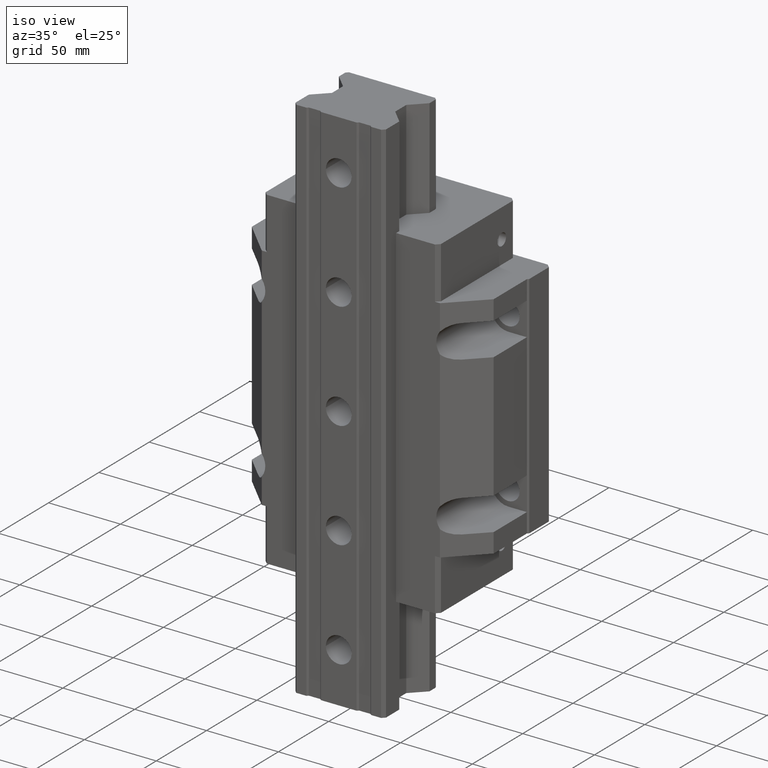
[diagram: clean part render]
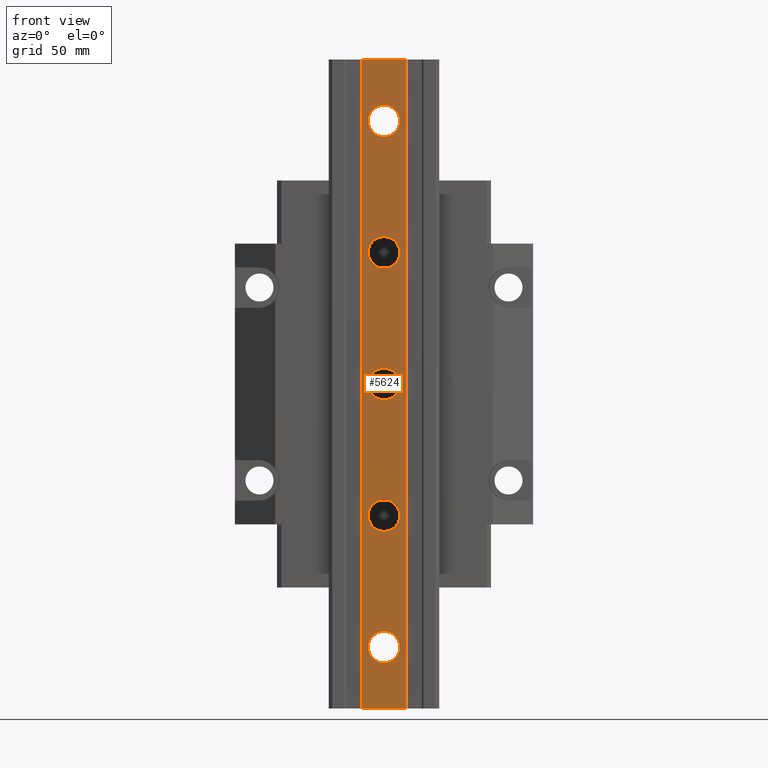
[diagram: tour spotlight — one face highlighted and labeled with its STEP entity id]
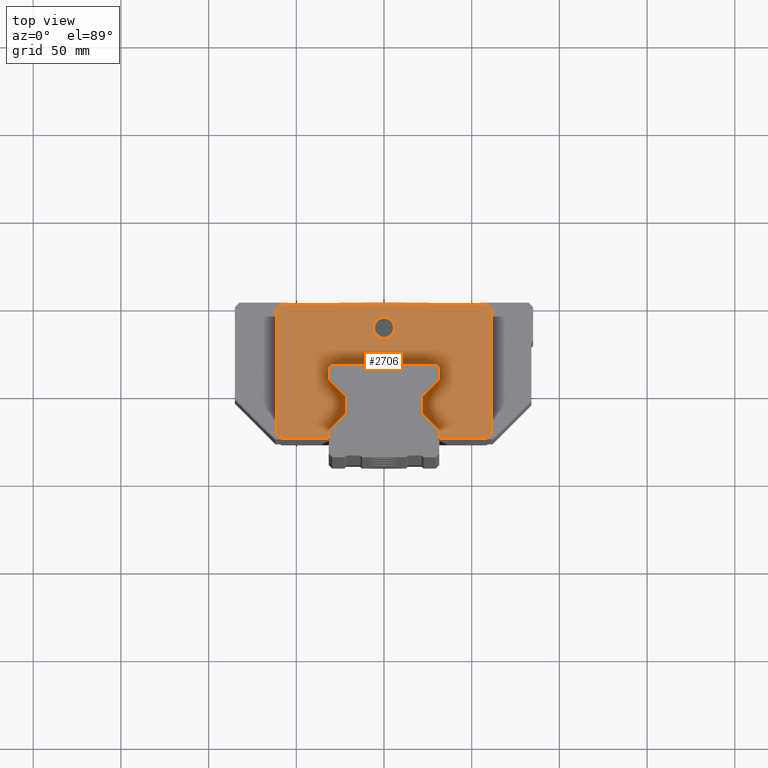
[diagram: tour spotlight — one face highlighted and labeled with its STEP entity id]
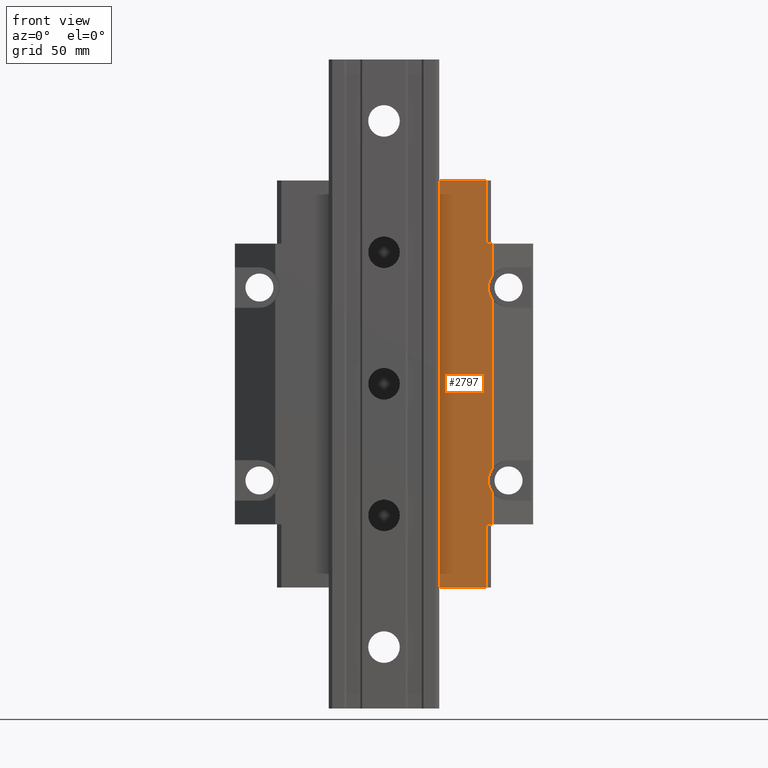
[diagram: tour spotlight — one face highlighted and labeled with its STEP entity id]
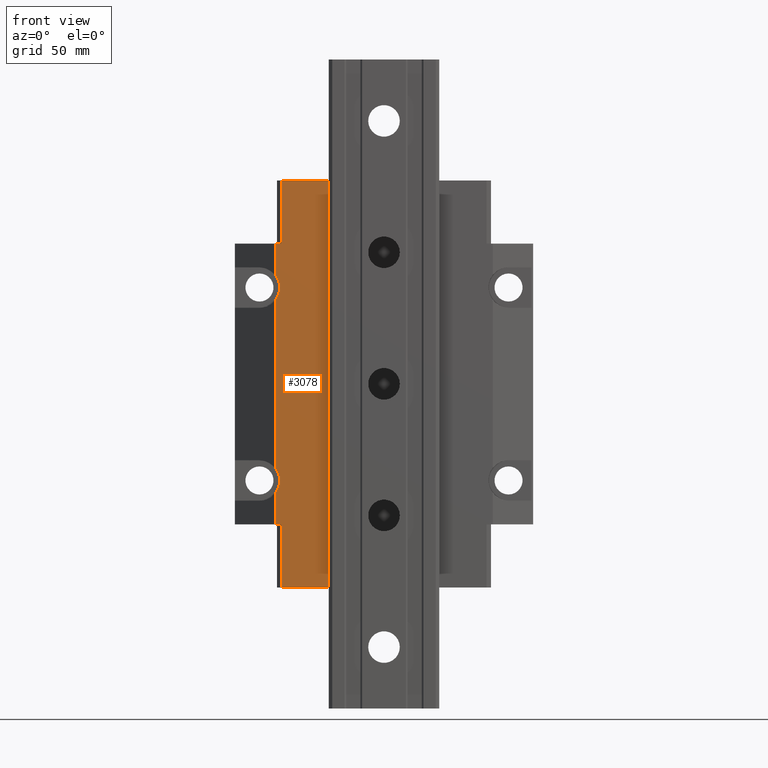
[diagram: tour spotlight — one face highlighted and labeled with its STEP entity id]
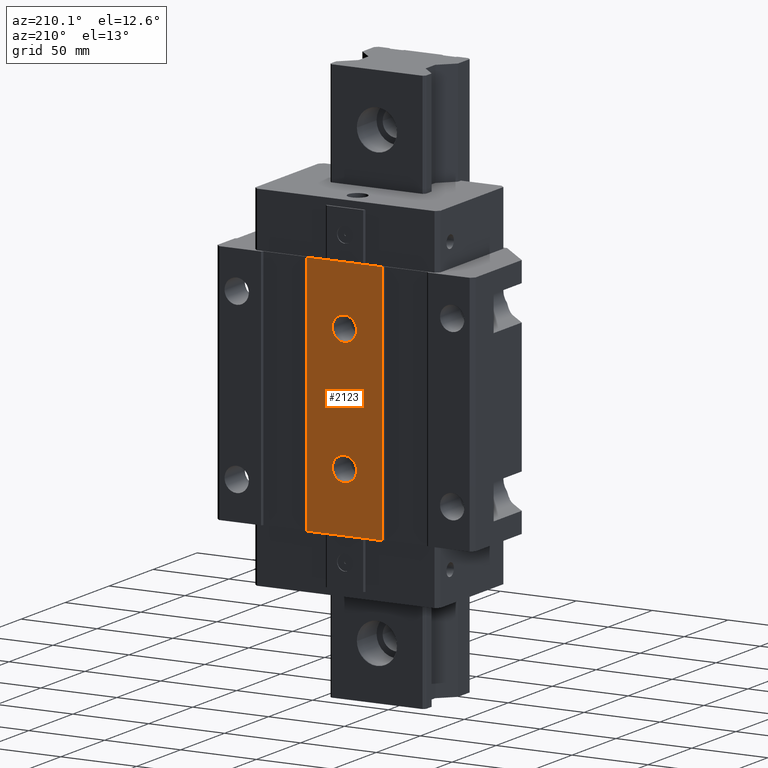
[diagram: tour spotlight — one face highlighted and labeled with its STEP entity id]
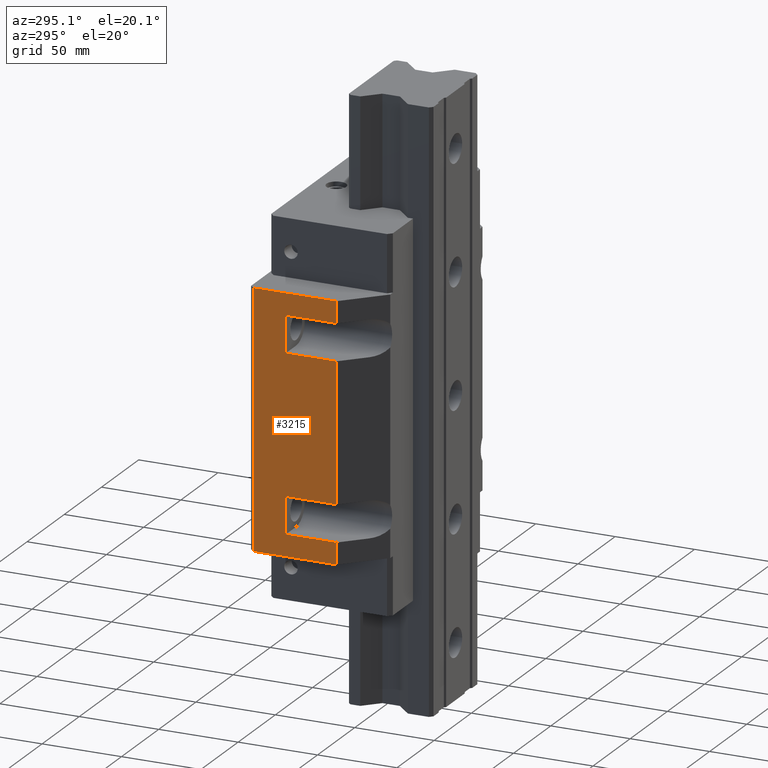
[diagram: tour spotlight — one face highlighted and labeled with its STEP entity id]
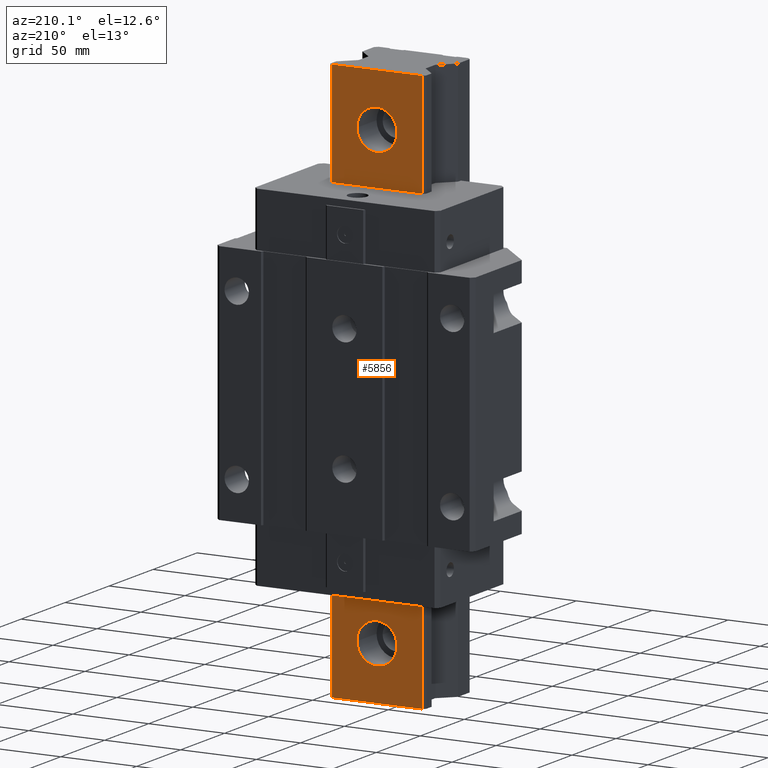
[diagram: tour spotlight — one face highlighted and labeled with its STEP entity id]
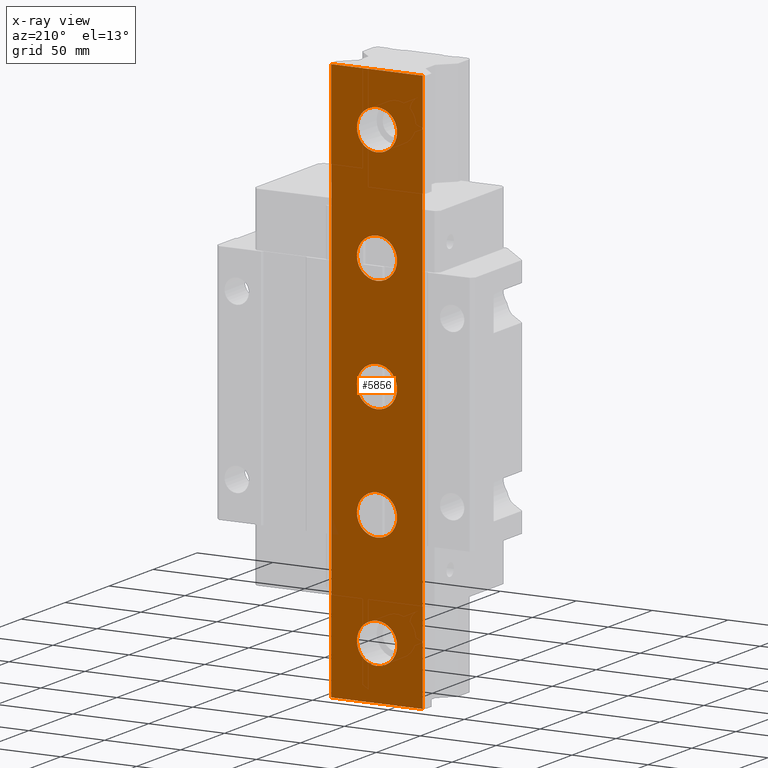
[diagram: x-ray of the same camera — body ghosted, this tour face saturated]
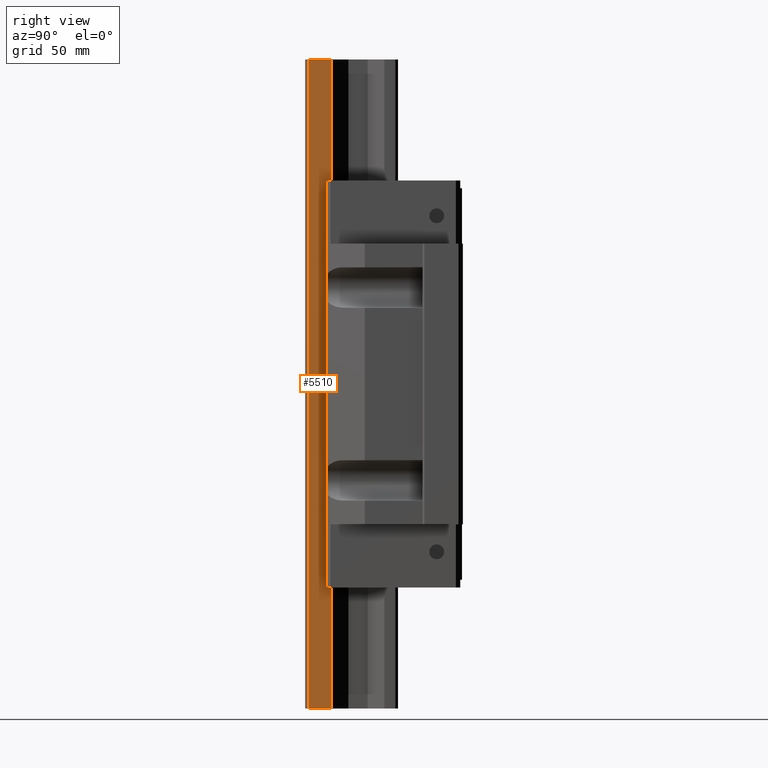
[diagram: tour spotlight — one face highlighted and labeled with its STEP entity id]
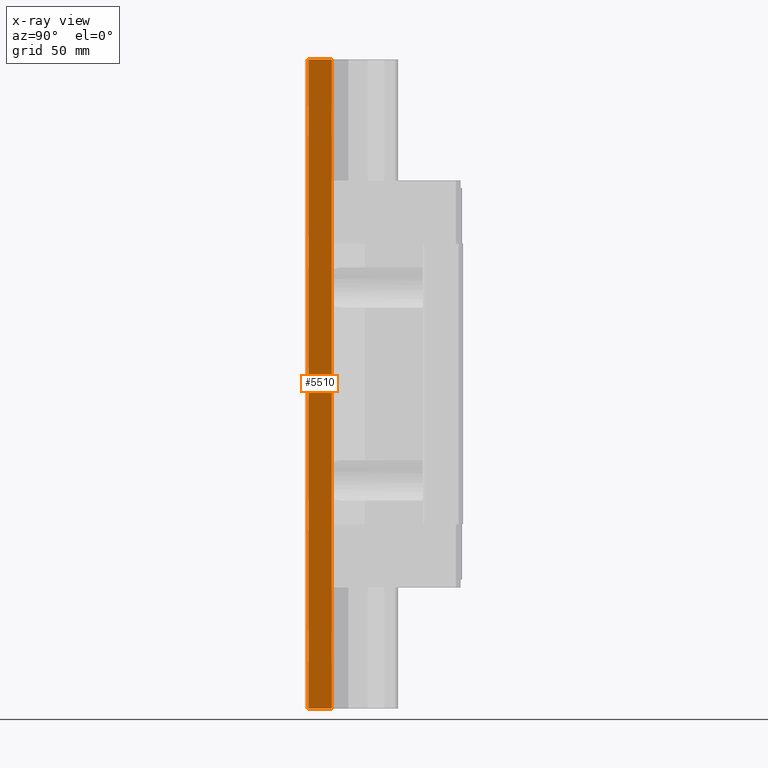
[diagram: x-ray of the same camera — body ghosted, this tour face saturated]
A machine part: a face-by-face anatomy tour. The part has 199 B-rep faces; the first image is the clean iso view, then the 8 largest visible faces are spotlighted one at a time (largest first), each with its STEP entity span.

Face 1 — front view, entity #5624. In plain terms, the highlighted planar face has unit normal (-0, -1, 0).
Definition (entity closure, byte-faithful):
#4470=DIRECTION('',(9.999999999998E-1,-5.787036611731E-7,0.E0));
#4471=VECTOR('',#4470,2.499998958334E1);
#4472=CARTESIAN_POINT('',(-1.250004234953E1,-8.999996674538E1,-1.85E2));
#4473=LINE('',#4472,#4471);
#4534=DIRECTION('',(0.E0,0.E0,1.E0));
#4535=VECTOR('',#4534,3.7E2);
#4536=CARTESIAN_POINT('',(1.249994723380E1,-8.999998121296E1,-1.85E2));
#4537=LINE('',#4536,#4535);
#4538=DIRECTION('',(0.E0,0.E0,1.E0));
#4539=VECTOR('',#4538,3.7E2);
#4540=CARTESIAN_POINT('',(-1.250004234953E1,-8.999996674538E1,-1.85E2));
#4541=LINE('',#4540,#4539);
#4542=DIRECTION('',(9.999999999998E-1,-5.787036611730E-7,0.E0));
#4543=VECTOR('',#4542,2.499998958334E1);
#4544=CARTESIAN_POINT('',(-1.250004234953E1,-8.999996674538E1,1.85E2));
#4545=LINE('',#4544,#4543);
#4546=CARTESIAN_POINT('',(-9.374997173481E-5,-8.999997397913E1,1.5E2));
#4547=DIRECTION('',(-1.041666653776E-6,-9.999999999995E-1,0.E0));
#4548=DIRECTION('',(-9.999999999995E-1,1.041666654563E-6,1.263187085796E-14));
#4549=AXIS2_PLACEMENT_3D('',#4546,#4547,#4548);
#4551=CARTESIAN_POINT('',(-9.374997173481E-5,-8.999997397913E1,1.5E2));
#4552=DIRECTION('',(-1.041666653776E-6,-9.999999999995E-1,0.E0));
#4553=DIRECTION('',(9.999999999995E-1,-1.041666654563E-6,1.263187085796E-14));
#4554=AXIS2_PLACEMENT_3D('',#4551,#4552,#4553);
#4556=CARTESIAN_POINT('',(-9.374997173481E-5,-8.999997397913E1,7.5E1));
#4557=DIRECTION('',(-1.041666653776E-6,-9.999999999995E-1,0.E0));
#4558=DIRECTION('',(-9.999999999995E-1,1.041666654563E-6,1.263187085796E-14));
#4559=AXIS2_PLACEMENT_3D('',#4556,#4557,#4558);
#4561=CARTESIAN_POINT('',(-9.374997173481E-5,-8.999997397913E1,7.5E1));
#4562=DIRECTION('',(-1.041666653776E-6,-9.999999999995E-1,0.E0));
#4563=DIRECTION('',(9.999999999995E-1,-1.041666654563E-6,1.263187085796E-14));
#4564=AXIS2_PLACEMENT_3D('',#4561,#4562,#4563);
#4566=CARTESIAN_POINT('',(-9.374997173481E-5,-8.999997397913E1,
8.526512829121E-14));
#4567=DIRECTION('',(-1.041666653776E-6,-9.999999999995E-1,0.E0));
#4568=DIRECTION('',(-9.999999999995E-1,1.041666654563E-6,0.E0));
#4569=AXIS2_PLACEMENT_3D('',#4566,#4567,#4568);
#4571=CARTESIAN_POINT('',(-9.374997173481E-5,-8.999997397913E1,
8.526512829121E-14));
#4572=DIRECTION('',(-1.041666653776E-6,-9.999999999995E-1,0.E0));
#4573=DIRECTION('',(9.999999999995E-1,-1.041666654563E-6,0.E0));
#4574=AXIS2_PLACEMENT_3D('',#4571,#4572,#4573);
#4576=CARTESIAN_POINT('',(-9.374997173481E-5,-8.999997397913E1,-7.5E1));
#4577=DIRECTION('',(-1.041666653776E-6,-9.999999999995E-1,0.E0));
#4578=DIRECTION('',(-9.999999999995E-1,1.041666654563E-6,0.E0));
#4579=AXIS2_PLACEMENT_3D('',#4576,#4577,#4578);
#4581=CARTESIAN_POINT('',(-9.374997173481E-5,-8.999997397913E1,-7.5E1));
#4582=DIRECTION('',(-1.041666653776E-6,-9.999999999995E-1,0.E0));
#4583=DIRECTION('',(9.999999999995E-1,-1.041666654563E-6,0.E0));
#4584=AXIS2_PLACEMENT_3D('',#4581,#4582,#4583);
#4586=CARTESIAN_POINT('',(-9.374997173481E-5,-8.999997397913E1,-1.5E2));
#4587=DIRECTION('',(-1.041666653776E-6,-9.999999999995E-1,0.E0));
#4588=DIRECTION('',(-9.999999999995E-1,1.041666654563E-6,0.E0));
#4589=AXIS2_PLACEMENT_3D('',#4586,#4587,#4588);
#4591=CARTESIAN_POINT('',(-9.374997173481E-5,-8.999997397913E1,-1.5E2));
#4592=DIRECTION('',(-1.041666653776E-6,-9.999999999995E-1,0.E0));
#4593=DIRECTION('',(9.999999999995E-1,-1.041666654563E-6,0.E0));
#4594=AXIS2_PLACEMENT_3D('',#4591,#4592,#4593);
#5216=CARTESIAN_POINT('',(-1.250004234953E1,-8.999996674538E1,-1.85E2));
#5217=VERTEX_POINT('',#5216);
#5218=CARTESIAN_POINT('',(1.249994723380E1,-8.999998121296E1,-1.85E2));
#5219=VERTEX_POINT('',#5218);
#5244=CARTESIAN_POINT('',(1.249994723380E1,-8.999998121296E1,1.85E2));
#5245=VERTEX_POINT('',#5244);
#5246=CARTESIAN_POINT('',(-1.250004234953E1,-8.999996674538E1,1.85E2));
#5247=VERTEX_POINT('',#5246);
#5248=CARTESIAN_POINT('',(-9.000093749967E0,-8.999996460413E1,1.5E2));
#5249=CARTESIAN_POINT('',(8.999906250023E0,-8.999998335413E1,1.5E2));
#5250=VERTEX_POINT('',#5248);
#5251=VERTEX_POINT('',#5249);
#5252=CARTESIAN_POINT('',(-9.000093749967E0,-8.999996460413E1,7.5E1));
#5253=CARTESIAN_POINT('',(8.999906250023E0,-8.999998335413E1,7.5E1));
#5254=VERTEX_POINT('',#5252);
#5255=VERTEX_POINT('',#5253);
#5256=CARTESIAN_POINT('',(-9.000093749967E0,-8.999996460413E1,
1.421085471520E-13));
#5257=CARTESIAN_POINT('',(8.999906250023E0,-8.999998335413E1,
1.392300445942E-13));
#5258=VERTEX_POINT('',#5256);
#5259=VERTEX_POINT('',#5257);
#5260=CARTESIAN_POINT('',(-9.000093749967E0,-8.999996460413E1,-7.5E1));
#5261=CARTESIAN_POINT('',(8.999906250023E0,-8.999998335413E1,-7.5E1));
#5262=VERTEX_POINT('',#5260);
#5263=VERTEX_POINT('',#5261);
#5264=CARTESIAN_POINT('',(-9.000093749967E0,-8.999996460413E1,-1.5E2));
#5265=CARTESIAN_POINT('',(8.999906250023E0,-8.999998335413E1,-1.5E2));
#5266=VERTEX_POINT('',#5264);
#5267=VERTEX_POINT('',#5265);
#5581=CARTESIAN_POINT('',(-1.250004958330E1,-8.999996095834E1,-1.85E2));
#5582=DIRECTION('',(-1.041666671171E-6,-9.999999999995E-1,0.E0));
#5583=DIRECTION('',(9.999999999995E-1,-1.041666671171E-6,0.E0));
#5584=AXIS2_PLACEMENT_3D('',#5581,#5582,#5583);
#5585=PLANE('',#5584);
#5586=ORIENTED_EDGE('',*,*,#5465,.F.);
#5588=ORIENTED_EDGE('',*,*,#5587,.T.);
#5590=ORIENTED_EDGE('',*,*,#5589,.T.);
#5591=ORIENTED_EDGE('',*,*,#5573,.F.);
#5592=EDGE_LOOP('',(#5586,#5588,#5590,#5591));
#5593=FACE_OUTER_BOUND('',#5592,.F.);
#5595=ORIENTED_EDGE('',*,*,#5594,.T.);
#5597=ORIENTED_EDGE('',*,*,#5596,.T.);
#5598=EDGE_LOOP('',(#5595,#5597));
#5599=FACE_BOUND('',#5598,.F.);
#5601=ORIENTED_EDGE('',*,*,#5600,.T.);
#5603=ORIENTED_EDGE('',*,*,#5602,.T.);
#5604=EDGE_LOOP('',(#5601,#5603));
#5605=FACE_BOUND('',#5604,.F.);
#5607=ORIENTED_EDGE('',*,*,#5606,.T.);
#5609=ORIENTED_EDGE('',*,*,#5608,.T.);
#5610=EDGE_LOOP('',(#5607,#5609));
#5611=FACE_BOUND('',#5610,.F.);
#5613=ORIENTED_EDGE('',*,*,#5612,.T.);
#5615=ORIENTED_EDGE('',*,*,#5614,.T.);
#5616=EDGE_LOOP('',(#5613,#5615));
#5617=FACE_BOUND('',#5616,.F.);
#5619=ORIENTED_EDGE('',*,*,#5618,.T.);
#5621=ORIENTED_EDGE('',*,*,#5620,.T.);
#5622=EDGE_LOOP('',(#5619,#5621));
#5623=FACE_BOUND('',#5622,.F.);
#5624=ADVANCED_FACE('',(#5593,#5599,#5605,#5611,#5617,#5623),#5585,.T.);
#4550=CIRCLE('',#4549,9.E0);
#4555=CIRCLE('',#4554,9.E0);
#4560=CIRCLE('',#4559,9.E0);
#4565=CIRCLE('',#4564,9.E0);
#4570=CIRCLE('',#4569,9.E0);
#4575=CIRCLE('',#4574,9.E0);
#4580=CIRCLE('',#4579,9.E0);
#4585=CIRCLE('',#4584,9.E0);
#4590=CIRCLE('',#4589,9.E0);
#4595=CIRCLE('',#4594,9.E0);
#5465=EDGE_CURVE('',#5217,#5219,#4473,.T.);
#5573=EDGE_CURVE('',#5219,#5245,#4537,.T.);
#5587=EDGE_CURVE('',#5217,#5247,#4541,.T.);
#5589=EDGE_CURVE('',#5247,#5245,#4545,.T.);
#5594=EDGE_CURVE('',#5250,#5251,#4550,.T.);
#5596=EDGE_CURVE('',#5251,#5250,#4555,.T.);
#5600=EDGE_CURVE('',#5254,#5255,#4560,.T.);
#5602=EDGE_CURVE('',#5255,#5254,#4565,.T.);
#5606=EDGE_CURVE('',#5258,#5259,#4570,.T.);
#5608=EDGE_CURVE('',#5259,#5258,#4575,.T.);
#5612=EDGE_CURVE('',#5262,#5263,#4580,.T.);
#5614=EDGE_CURVE('',#5263,#5262,#4585,.T.);
#5618=EDGE_CURVE('',#5266,#5267,#4590,.T.);
#5620=EDGE_CURVE('',#5267,#5266,#4595,.T.);

Face 2 — top view, entity #2706. In plain terms, the highlighted planar face has unit normal (0, 0, 1).
Definition (entity closure, byte-faithful):
#281=DIRECTION('',(0.E0,-1.E0,0.E0));
#282=VECTOR('',#281,7.1499992E1);
#283=CARTESIAN_POINT('',(-6.100006E1,-4.E0,1.16E2));
#284=LINE('',#283,#282);
#341=DIRECTION('',(-1.E0,1.601567881164E-14,0.E0));
#342=VECTOR('',#341,1.17E2);
#343=CARTESIAN_POINT('',(5.849994E1,-1.5E0,1.16E2));
#344=LINE('',#343,#342);
#493=DIRECTION('',(7.071067811865E-1,-7.071067811866E-1,0.E0));
#494=VECTOR('',#493,3.535533905933E0);
#495=CARTESIAN_POINT('',(5.849994E1,-1.5E0,1.16E2));
#496=LINE('',#495,#494);
#497=DIRECTION('',(-7.071067811865E-1,-7.071067811866E-1,0.E0));
#498=VECTOR('',#497,3.535533905933E0);
#499=CARTESIAN_POINT('',(6.099994E1,-7.5499992E1,1.16E2));
#500=LINE('',#499,#498);
#501=DIRECTION('',(-7.071067693190E-1,7.071067930541E-1,0.E0));
#502=VECTOR('',#501,1.343502940587E1);
#503=CARTESIAN_POINT('',(3.149994018310E1,-7.478096104164E1,1.16E2));
#504=LINE('',#503,#502);
#505=DIRECTION('',(7.071067808141E-1,7.071067815590E-1,0.E0));
#506=VECTOR('',#505,1.343502873807E1);
#507=CARTESIAN_POINT('',(2.199993994421E1,-5.431902284949E1,1.16E2));
#508=LINE('',#507,#506);
#509=CARTESIAN_POINT('',(3.049994E1,-3.891421356237E1,1.16E2));
#510=DIRECTION('',(0.E0,0.E0,1.E0));
#511=DIRECTION('',(9.999999999991E-1,1.315156737292E-6,0.E0));
#512=AXIS2_PLACEMENT_3D('',#509,#510,#511);
#514=DIRECTION('',(-7.071098320872E-1,7.071037302727E-1,2.497307503516E-14));
#515=VECTOR('',#514,1.707141154447E0);
#516=CARTESIAN_POINT('',(3.120704678120E1,-3.820710678120E1,1.16E2));
#517=LINE('',#516,#515);
#518=DIRECTION('',(-7.071037303087E-1,-7.071098320512E-1,-2.497278770616E-14));
#519=VECTOR('',#518,1.707160796273E0);
#520=CARTESIAN_POINT('',(-3.000002701391E1,-3.699995659726E1,1.16E2));
#521=LINE('',#520,#519);
#522=CARTESIAN_POINT('',(-3.050006E1,-3.891421356237E1,1.16E2));
#523=DIRECTION('',(0.E0,0.E0,1.E0));
#524=DIRECTION('',(-7.071067812118E-1,7.071067811613E-1,0.E0));
#525=AXIS2_PLACEMENT_3D('',#522,#523,#524);
#527=DIRECTION('',(7.071067808141E-1,-7.071067815590E-1,0.E0));
#528=VECTOR('',#527,1.343502873807E1);
#529=CARTESIAN_POINT('',(-3.150005986533E1,-4.481902291836E1,1.16E2));
#530=LINE('',#529,#528);
#531=DIRECTION('',(-7.071068016126E-1,-7.071067607605E-1,0.E0));
#532=VECTOR('',#531,1.343503046467E1);
#533=CARTESIAN_POINT('',(-2.200005994421E1,-6.528096048387E1,1.16E2));
#534=LINE('',#533,#532);
#535=DIRECTION('',(-7.071067811866E-1,7.071067811865E-1,0.E0));
#536=VECTOR('',#535,3.535533905933E0);
#537=CARTESIAN_POINT('',(-5.850006E1,-7.7999992E1,1.16E2));
#538=LINE('',#537,#536);
#539=DIRECTION('',(7.071067811864E-1,7.071067811867E-1,0.E0));
#540=VECTOR('',#539,3.535533905934E0);
#541=CARTESIAN_POINT('',(-6.100006E1,-4.E0,1.16E2));
#542=LINE('',#541,#540);
#543=CARTESIAN_POINT('',(2.842170943040E-13,-1.5E1,1.16E2));
#544=DIRECTION('',(0.E0,0.E0,1.E0));
#545=DIRECTION('',(-9.999999999995E-1,1.041667064214E-6,0.E0));
#546=AXIS2_PLACEMENT_3D('',#543,#544,#545);
#548=CARTESIAN_POINT('',(2.842170943040E-13,-1.5E1,1.16E2));
#549=DIRECTION('',(0.E0,0.E0,1.E0));
#550=DIRECTION('',(9.999999999995E-1,-1.041667063930E-6,0.E0));
#551=AXIS2_PLACEMENT_3D('',#548,#549,#550);
#577=DIRECTION('',(0.E0,1.E0,0.E0));
#578=VECTOR('',#577,7.1499992E1);
#579=CARTESIAN_POINT('',(6.099994E1,-7.5499992E1,1.16E2));
#580=LINE('',#579,#578);
#617=DIRECTION('',(1.E0,0.E0,0.E0));
#618=VECTOR('',#617,2.700000011282E1);
#619=CARTESIAN_POINT('',(3.149993988718E1,-7.7999992E1,1.16E2));
#620=LINE('',#619,#618);
#643=DIRECTION('',(-9.193061393849E-8,-1.E0,-1.765854991647E-14));
#644=VECTOR('',#643,3.219030958356E0);
#645=CARTESIAN_POINT('',(3.149994018310E1,-7.478096104164E1,1.16E2));
#646=LINE('',#645,#644);
#659=DIRECTION('',(8.815395168852E-14,-1.E0,0.E0));
#660=VECTOR('',#659,1.096193763438E1);
#661=CARTESIAN_POINT('',(2.199993994421E1,-5.431902284949E1,1.16E2));
#662=LINE('',#661,#660);
#675=DIRECTION('',(-1.791970200967E-8,-1.E0,1.203328737262E-14));
#676=VECTOR('',#675,5.904809830909E0);
#677=CARTESIAN_POINT('',(3.149993997114E1,-3.891421308745E1,1.16E2));
#678=LINE('',#677,#676);
#727=DIRECTION('',(9.999999999999E-1,-4.050925728465E-7,0.E0));
#728=VECTOR('',#727,5.999993750005E1);
#729=CARTESIAN_POINT('',(-3.000002701391E1,-3.699995659726E1,1.16E2));
#730=LINE('',#729,#728);
#799=DIRECTION('',(-1.791963451235E-8,1.E0,0.E0));
#800=VECTOR('',#799,5.904809867458E0);
#801=CARTESIAN_POINT('',(-3.150005986533E1,-4.481902291836E1,1.16E2));
#802=LINE('',#801,#800);
#815=DIRECTION('',(-3.921554468497E-14,1.E0,0.E0));
#816=VECTOR('',#815,1.096193763438E1);
#817=CARTESIAN_POINT('',(-2.200005994421E1,-6.528096048387E1,1.16E2));
#818=LINE('',#817,#816);
#831=DIRECTION('',(-6.248480242821E-7,9.999999999998E-1,2.648782746519E-14));
#832=VECTOR('',#831,3.219030643538E0);
#833=CARTESIAN_POINT('',(-3.150005935425E1,-7.7999992E1,1.16E2));
#834=LINE('',#833,#832);
#873=DIRECTION('',(1.E0,0.E0,0.E0));
#874=VECTOR('',#873,2.700000064575E1);
#875=CARTESIAN_POINT('',(-5.850006E1,-7.7999992E1,1.16E2));
#876=LINE('',#875,#874);
#1717=CARTESIAN_POINT('',(-3.150005935425E1,-7.7999992E1,1.16E2));
#1718=VERTEX_POINT('',#1717);
#1731=CARTESIAN_POINT('',(-5.850006E1,-7.7999992E1,1.16E2));
#1732=VERTEX_POINT('',#1731);
#1733=CARTESIAN_POINT('',(-3.150006136565E1,-7.478096135646E1,1.16E2));
#1734=VERTEX_POINT('',#1733);
#1735=CARTESIAN_POINT('',(-2.200005994421E1,-6.528096048387E1,1.16E2));
#1736=VERTEX_POINT('',#1735);
#1737=CARTESIAN_POINT('',(-2.200005994421E1,-5.431902284949E1,1.16E2));
#1738=VERTEX_POINT('',#1737);
#1739=CARTESIAN_POINT('',(-3.150005986533E1,-4.481902291836E1,1.16E2));
#1740=VERTEX_POINT('',#1739);
#1745=CARTESIAN_POINT('',(-3.150005997114E1,-3.891421305091E1,1.16E2));
#1746=VERTEX_POINT('',#1745);
#1755=CARTESIAN_POINT('',(-3.120716678121E1,-3.820710678121E1,1.16E2));
#1756=VERTEX_POINT('',#1755);
#1761=CARTESIAN_POINT('',(-3.000002701391E1,-3.699995659726E1,1.16E2));
#1762=VERTEX_POINT('',#1761);
#1763=CARTESIAN_POINT('',(2.999991048613E1,-3.699998090279E1,1.16E2));
#1764=VERTEX_POINT('',#1763);
#1829=CARTESIAN_POINT('',(-5.850006E1,-1.499999999999E0,1.16E2));
#1830=VERTEX_POINT('',#1829);
#1835=CARTESIAN_POINT('',(5.849994E1,-1.5E0,1.16E2));
#1836=VERTEX_POINT('',#1835);
#1837=CARTESIAN_POINT('',(-6.100006E1,-4.E0,1.16E2));
#1838=VERTEX_POINT('',#1837);
#1839=CARTESIAN_POINT('',(6.099994E1,-4.000000000001E0,1.16E2));
#1840=VERTEX_POINT('',#1839);
#1841=CARTESIAN_POINT('',(6.099994E1,-7.5499992E1,1.16E2));
#1842=VERTEX_POINT('',#1841);
#1843=CARTESIAN_POINT('',(5.849994E1,-7.7999992E1,1.16E2));
#1844=VERTEX_POINT('',#1843);
#1845=CARTESIAN_POINT('',(3.149993988718E1,-7.7999992E1,1.16E2));
#1846=VERTEX_POINT('',#1845);
#1847=CARTESIAN_POINT('',(3.149994018310E1,-7.478096104164E1,1.16E2));
#1848=VERTEX_POINT('',#1847);
#1849=CARTESIAN_POINT('',(2.199993994421E1,-6.528096048387E1,1.16E2));
#1850=VERTEX_POINT('',#1849);
#1851=CARTESIAN_POINT('',(2.199993994421E1,-5.431902284949E1,1.16E2));
#1852=VERTEX_POINT('',#1851);
#1853=CARTESIAN_POINT('',(3.149993986533E1,-4.481902291836E1,1.16E2));
#1854=VERTEX_POINT('',#1853);
#1855=CARTESIAN_POINT('',(3.149993997114E1,-3.891421308745E1,1.16E2));
#1856=VERTEX_POINT('',#1855);
#1857=CARTESIAN_POINT('',(3.120704678121E1,-3.820710678121E1,1.16E2));
#1858=VERTEX_POINT('',#1857);
#1859=CARTESIAN_POINT('',(-6.100006E1,-7.5499992E1,1.16E2));
#1860=VERTEX_POINT('',#1859);
#1861=CARTESIAN_POINT('',(-6.249999999996E0,-1.499999348958E1,1.16E2));
#1862=CARTESIAN_POINT('',(6.249999999997E0,-1.500000651042E1,1.16E2));
#1863=VERTEX_POINT('',#1861);
#1864=VERTEX_POINT('',#1862);
#2649=CARTESIAN_POINT('',(5.849994E1,-1.5E0,1.16E2));
#2650=DIRECTION('',(0.E0,0.E0,1.E0));
#2651=DIRECTION('',(1.E0,-1.997913434205E-14,0.E0));
#2652=AXIS2_PLACEMENT_3D('',#2649,#2650,#2651);
#2653=PLANE('',#2652);
#2655=ORIENTED_EDGE('',*,*,#2654,.T.);
#2657=ORIENTED_EDGE('',*,*,#2656,.F.);
#2659=ORIENTED_EDGE('',*,*,#2658,.T.);
#2661=ORIENTED_EDGE('',*,*,#2660,.F.);
#2663=ORIENTED_EDGE('',*,*,#2662,.F.);
#2665=ORIENTED_EDGE('',*,*,#2664,.T.);
#2667=ORIENTED_EDGE('',*,*,#2666,.F.);
#2669=ORIENTED_EDGE('',*,*,#2668,.T.);
#2671=ORIENTED_EDGE('',*,*,#2670,.F.);
#2673=ORIENTED_EDGE('',*,*,#2672,.T.);
#2675=ORIENTED_EDGE('',*,*,#2674,.T.);
#2677=ORIENTED_EDGE('',*,*,#2676,.F.);
#2679=ORIENTED_EDGE('',*,*,#2678,.T.);
#2681=ORIENTED_EDGE('',*,*,#2680,.T.);
#2683=ORIENTED_EDGE('',*,*,#2682,.F.);
#2685=ORIENTED_EDGE('',*,*,#2684,.T.);
#2687=ORIENTED_EDGE('',*,*,#2686,.F.);
#2689=ORIENTED_EDGE('',*,*,#2688,.T.);
#2691=ORIENTED_EDGE('',*,*,#2690,.F.);
#2693=ORIENTED_EDGE('',*,*,#2692,.F.);
#2694=ORIENTED_EDGE('',*,*,#2641,.T.);
#2695=ORIENTED_EDGE('',*,*,#2361,.F.);
#2696=ORIENTED_EDGE('',*,*,#2402,.T.);
#2697=ORIENTED_EDGE('',*,*,#2428,.F.);
#2698=EDGE_LOOP('',(#2655,#2657,#2659,#2661,#2663,#2665,#2667,#2669,#2671,#2673,
#2675,#2677,#2679,#2681,#2683,#2685,#2687,#2689,#2691,#2693,#2694,#2695,#2696,
#2697));
#2699=FACE_OUTER_BOUND('',#2698,.F.);
#2701=ORIENTED_EDGE('',*,*,#2700,.T.);
#2703=ORIENTED_EDGE('',*,*,#2702,.T.);
#2704=EDGE_LOOP('',(#2701,#2703));
#2705=FACE_BOUND('',#2704,.F.);
#2706=ADVANCED_FACE('',(#2699,#2705),#2653,.T.);
#513=CIRCLE('',#512,1.E0);
#526=CIRCLE('',#525,1.E0);
#547=CIRCLE('',#546,6.25E0);
#552=CIRCLE('',#551,6.25E0);
#2361=EDGE_CURVE('',#1838,#1860,#284,.T.);
#2402=EDGE_CURVE('',#1838,#1830,#542,.T.);
#2428=EDGE_CURVE('',#1836,#1830,#344,.T.);
#2641=EDGE_CURVE('',#1732,#1860,#538,.T.);
#2654=EDGE_CURVE('',#1836,#1840,#496,.T.);
#2656=EDGE_CURVE('',#1842,#1840,#580,.T.);
#2658=EDGE_CURVE('',#1842,#1844,#500,.T.);
#2660=EDGE_CURVE('',#1846,#1844,#620,.T.);
#2662=EDGE_CURVE('',#1848,#1846,#646,.T.);
#2664=EDGE_CURVE('',#1848,#1850,#504,.T.);
#2666=EDGE_CURVE('',#1852,#1850,#662,.T.);
#2668=EDGE_CURVE('',#1852,#1854,#508,.T.);
#2670=EDGE_CURVE('',#1856,#1854,#678,.T.);
#2672=EDGE_CURVE('',#1856,#1858,#513,.T.);
#2674=EDGE_CURVE('',#1858,#1764,#517,.T.);
#2676=EDGE_CURVE('',#1762,#1764,#730,.T.);
#2678=EDGE_CURVE('',#1762,#1756,#521,.T.);
#2680=EDGE_CURVE('',#1756,#1746,#526,.T.);
#2682=EDGE_CURVE('',#1740,#1746,#802,.T.);
#2684=EDGE_CURVE('',#1740,#1738,#530,.T.);
#2686=EDGE_CURVE('',#1736,#1738,#818,.T.);
#2688=EDGE_CURVE('',#1736,#1734,#534,.T.);
#2690=EDGE_CURVE('',#1718,#1734,#834,.T.);
#2692=EDGE_CURVE('',#1732,#1718,#876,.T.);
#2700=EDGE_CURVE('',#1863,#1864,#547,.T.);
#2702=EDGE_CURVE('',#1864,#1863,#552,.T.);

Face 3 — front view, entity #2797. In plain terms, the highlighted planar face has unit normal (0, -1, 0).
Definition (entity closure, byte-faithful):
#101=DIRECTION('',(1.E0,-4.466268624779E-14,0.E0));
#102=VECTOR('',#101,3.499999999999E0);
#103=CARTESIAN_POINT('',(5.849994E1,-7.7999992E1,-8.E1));
#104=LINE('',#103,#102);
#609=DIRECTION('',(0.E0,0.E0,-1.E0));
#610=VECTOR('',#609,3.6E1);
#611=CARTESIAN_POINT('',(5.849994E1,-7.7999992E1,-8.E1));
#612=LINE('',#611,#610);
#613=DIRECTION('',(-1.E0,0.E0,0.E0));
#614=VECTOR('',#613,2.699999999936E1);
#615=CARTESIAN_POINT('',(5.849994E1,-7.7999992E1,-1.16E2));
#616=LINE('',#615,#614);
#617=DIRECTION('',(1.E0,0.E0,0.E0));
#618=VECTOR('',#617,2.700000011282E1);
#619=CARTESIAN_POINT('',(3.149993988718E1,-7.7999992E1,1.16E2));
#620=LINE('',#619,#618);
#621=DIRECTION('',(1.E0,1.218073261303E-14,0.E0));
#622=VECTOR('',#621,3.500000000001E0);
#623=CARTESIAN_POINT('',(5.849994E1,-7.7999992E1,8.E1));
#624=LINE('',#623,#622);
#625=CARTESIAN_POINT('',(7.1E1,-7.7999992E1,5.5E1));
#626=DIRECTION('',(0.E0,-1.E0,0.E0));
#627=DIRECTION('',(-7.826139130435E-1,0.E0,6.225074000450E-1));
#628=AXIS2_PLACEMENT_3D('',#625,#626,#627);
#630=CARTESIAN_POINT('',(7.1E1,-7.7999992E1,-5.5E1));
#631=DIRECTION('',(0.E0,-1.E0,0.E0));
#632=DIRECTION('',(-7.826139130435E-1,0.E0,6.225074000450E-1));
#633=AXIS2_PLACEMENT_3D('',#630,#631,#632);
#635=DIRECTION('',(4.890626447879E-10,0.E0,-1.E0));
#636=VECTOR('',#635,2.32E2);
#637=CARTESIAN_POINT('',(3.149993988718E1,-7.7999992E1,1.16E2));
#638=LINE('',#637,#636);
#1119=DIRECTION('',(0.E0,0.E0,1.E0));
#1120=VECTOR('',#1119,3.6E1);
#1121=CARTESIAN_POINT('',(5.849994E1,-7.7999992E1,8.E1));
#1122=LINE('',#1121,#1120);
#1123=DIRECTION('',(3.425038422079E-14,0.E0,1.E0));
#1124=VECTOR('',#1123,1.784116489948E1);
#1125=CARTESIAN_POINT('',(6.199994E1,-7.7999992E1,6.215883510052E1));
#1126=LINE('',#1125,#1124);
#1190=DIRECTION('',(2.031127436349E-14,0.E0,1.E0));
#1191=VECTOR('',#1190,1.784116489948E1);
#1192=CARTESIAN_POINT('',(6.199994E1,-7.7999992E1,-8.E1));
#1193=LINE('',#1192,#1191);
#1222=DIRECTION('',(0.E0,0.E0,1.E0));
#1223=VECTOR('',#1222,9.568232979896E1);
#1224=CARTESIAN_POINT('',(6.199994E1,-7.7999992E1,-4.784116489948E1));
#1225=LINE('',#1224,#1223);
#1621=CARTESIAN_POINT('',(5.849994E1,-7.7999992E1,-8.E1));
#1622=VERTEX_POINT('',#1621);
#1623=CARTESIAN_POINT('',(6.199994E1,-7.7999992E1,-8.E1));
#1624=VERTEX_POINT('',#1623);
#1707=CARTESIAN_POINT('',(3.149994000064E1,-7.7999992E1,-1.16E2));
#1708=VERTEX_POINT('',#1707);
#1709=CARTESIAN_POINT('',(5.849994E1,-7.7999992E1,-1.16E2));
#1710=VERTEX_POINT('',#1709);
#1821=CARTESIAN_POINT('',(6.199994E1,-7.7999992E1,8.E1));
#1822=VERTEX_POINT('',#1821);
#1823=CARTESIAN_POINT('',(5.849994E1,-7.7999992E1,8.E1));
#1824=VERTEX_POINT('',#1823);
#1843=CARTESIAN_POINT('',(5.849994E1,-7.7999992E1,1.16E2));
#1844=VERTEX_POINT('',#1843);
#1845=CARTESIAN_POINT('',(3.149993988718E1,-7.7999992E1,1.16E2));
#1846=VERTEX_POINT('',#1845);
#1865=CARTESIAN_POINT('',(6.199994E1,-7.7999992E1,6.215883510052E1));
#1866=VERTEX_POINT('',#1865);
#1867=CARTESIAN_POINT('',(6.199994E1,-7.7999992E1,4.784116489948E1));
#1868=VERTEX_POINT('',#1867);
#1869=CARTESIAN_POINT('',(6.199994E1,-7.7999992E1,-4.784116489948E1));
#1870=VERTEX_POINT('',#1869);
#1871=CARTESIAN_POINT('',(6.199994E1,-7.7999992E1,-6.215883510052E1));
#1872=VERTEX_POINT('',#1871);
#2771=CARTESIAN_POINT('',(3.149993995026E1,-7.7999992E1,-8.E1));
#2772=DIRECTION('',(0.E0,-1.E0,0.E0));
#2773=DIRECTION('',(1.E0,0.E0,0.E0));
#2774=AXIS2_PLACEMENT_3D('',#2771,#2772,#2773);
#2775=PLANE('',#2774);
#2776=ORIENTED_EDGE('',*,*,#2765,.T.);
#2777=ORIENTED_EDGE('',*,*,#2324,.T.);
#2779=ORIENTED_EDGE('',*,*,#2778,.F.);
#2780=ORIENTED_EDGE('',*,*,#2660,.T.);
#2782=ORIENTED_EDGE('',*,*,#2781,.F.);
#2783=ORIENTED_EDGE('',*,*,#2483,.T.);
#2785=ORIENTED_EDGE('',*,*,#2784,.F.);
#2787=ORIENTED_EDGE('',*,*,#2786,.T.);
#2789=ORIENTED_EDGE('',*,*,#2788,.F.);
#2791=ORIENTED_EDGE('',*,*,#2790,.T.);
#2793=ORIENTED_EDGE('',*,*,#2792,.F.);
#2794=ORIENTED_EDGE('',*,*,#2201,.F.);
#2795=EDGE_LOOP('',(#2776,#2777,#2779,#2780,#2782,#2783,#2785,#2787,#2789,#2791,
#2793,#2794));
#2796=FACE_OUTER_BOUND('',#2795,.F.);
#2797=ADVANCED_FACE('',(#2796),#2775,.T.);
#629=CIRCLE('',#628,1.15E1);
#634=CIRCLE('',#633,1.15E1);
#2201=EDGE_CURVE('',#1622,#1624,#104,.T.);
#2324=EDGE_CURVE('',#1710,#1708,#616,.T.);
#2483=EDGE_CURVE('',#1824,#1822,#624,.T.);
#2660=EDGE_CURVE('',#1846,#1844,#620,.T.);
#2765=EDGE_CURVE('',#1622,#1710,#612,.T.);
#2778=EDGE_CURVE('',#1846,#1708,#638,.T.);
#2781=EDGE_CURVE('',#1824,#1844,#1122,.T.);
#2784=EDGE_CURVE('',#1866,#1822,#1126,.T.);
#2786=EDGE_CURVE('',#1866,#1868,#629,.T.);
#2788=EDGE_CURVE('',#1870,#1868,#1225,.T.);
#2790=EDGE_CURVE('',#1870,#1872,#634,.T.);
#2792=EDGE_CURVE('',#1624,#1872,#1193,.T.);

Face 4 — front view, entity #3078. In plain terms, the highlighted planar face has unit normal (0, -1, 0).
Definition (entity closure, byte-faithful):
#173=DIRECTION('',(1.E0,-2.030122102172E-13,0.E0));
#174=VECTOR('',#173,3.499999999999E0);
#175=CARTESIAN_POINT('',(-6.200006E1,-7.7999992E1,-8.E1));
#176=LINE('',#175,#174);
#835=DIRECTION('',(4.890567950611E-10,0.E0,-1.E0));
#836=VECTOR('',#835,2.32E2);
#837=CARTESIAN_POINT('',(-3.150005935425E1,-7.7999992E1,1.16E2));
#838=LINE('',#837,#836);
#839=DIRECTION('',(-1.E0,-2.263210131745E-14,0.E0));
#840=VECTOR('',#839,2.700000075922E1);
#841=CARTESIAN_POINT('',(-3.150005924078E1,-7.7999992E1,-1.16E2));
#842=LINE('',#841,#840);
#843=DIRECTION('',(-4.102115587443E-14,0.E0,1.E0));
#844=VECTOR('',#843,1.784101403854E1);
#845=CARTESIAN_POINT('',(-6.200006E1,-7.7999992E1,-8.E1));
#846=LINE('',#845,#844);
#847=CARTESIAN_POINT('',(-7.1E1,-7.7999992E1,-5.5E1));
#848=DIRECTION('',(0.E0,-1.E0,0.E0));
#849=DIRECTION('',(7.826034782609E-1,0.E0,-6.225205183879E-1));
#850=AXIS2_PLACEMENT_3D('',#847,#848,#849);
#852=DIRECTION('',(0.E0,0.E0,1.E0));
#853=VECTOR('',#852,9.568202807708E1);
#854=CARTESIAN_POINT('',(-6.200006E1,-7.7999992E1,-4.784101403854E1));
#855=LINE('',#854,#853);
#856=CARTESIAN_POINT('',(-7.1E1,-7.7999992E1,5.5E1));
#857=DIRECTION('',(0.E0,-1.E0,0.E0));
#858=DIRECTION('',(7.826034782609E-1,0.E0,-6.225205183879E-1));
#859=AXIS2_PLACEMENT_3D('',#856,#857,#858);
#861=DIRECTION('',(-1.752360056772E-14,0.E0,1.E0));
#862=VECTOR('',#861,1.784101403854E1);
#863=CARTESIAN_POINT('',(-6.200006E1,-7.7999992E1,6.215898596146E1));
#864=LINE('',#863,#862);
#865=DIRECTION('',(1.E0,-1.745905007868E-13,0.E0));
#866=VECTOR('',#865,3.5E0);
#867=CARTESIAN_POINT('',(-6.200006E1,-7.7999992E1,8.E1));
#868=LINE('',#867,#866);
#869=DIRECTION('',(0.E0,0.E0,1.E0));
#870=VECTOR('',#869,3.6E1);
#871=CARTESIAN_POINT('',(-5.850006E1,-7.7999992E1,8.E1));
#872=LINE('',#871,#870);
#873=DIRECTION('',(1.E0,0.E0,0.E0));
#874=VECTOR('',#873,2.700000064575E1);
#875=CARTESIAN_POINT('',(-5.850006E1,-7.7999992E1,1.16E2));
#876=LINE('',#875,#874);
#877=DIRECTION('',(-1.223712489365E-14,0.E0,-1.E0));
#878=VECTOR('',#877,3.6E1);
#879=CARTESIAN_POINT('',(-5.850006E1,-7.7999992E1,-8.E1));
#880=LINE('',#879,#878);
#1653=CARTESIAN_POINT('',(-6.200006E1,-7.7999992E1,-8.E1));
#1654=VERTEX_POINT('',#1653);
#1655=CARTESIAN_POINT('',(-5.850006E1,-7.7999992E1,-8.E1));
#1656=VERTEX_POINT('',#1655);
#1675=CARTESIAN_POINT('',(-5.850006E1,-7.7999992E1,-1.16E2));
#1676=VERTEX_POINT('',#1675);
#1677=CARTESIAN_POINT('',(-3.150005924078E1,-7.7999992E1,-1.16E2));
#1678=VERTEX_POINT('',#1677);
#1717=CARTESIAN_POINT('',(-3.150005935425E1,-7.7999992E1,1.16E2));
#1718=VERTEX_POINT('',#1717);
#1719=CARTESIAN_POINT('',(-6.200006E1,-7.7999992E1,-6.215898596146E1));
#1720=VERTEX_POINT('',#1719);
#1721=CARTESIAN_POINT('',(-6.200006E1,-7.7999992E1,-4.784101403854E1));
#1722=VERTEX_POINT('',#1721);
#1723=CARTESIAN_POINT('',(-6.200006E1,-7.7999992E1,4.784101403854E1));
#1724=VERTEX_POINT('',#1723);
#1725=CARTESIAN_POINT('',(-6.200006E1,-7.7999992E1,6.215898596146E1));
#1726=VERTEX_POINT('',#1725);
#1727=CARTESIAN_POINT('',(-6.200006E1,-7.7999992E1,8.E1));
#1728=VERTEX_POINT('',#1727);
#1729=CARTESIAN_POINT('',(-5.850006E1,-7.7999992E1,8.E1));
#1730=VERTEX_POINT('',#1729);
#1731=CARTESIAN_POINT('',(-5.850006E1,-7.7999992E1,1.16E2));
#1732=VERTEX_POINT('',#1731);
#3053=CARTESIAN_POINT('',(-6.200006E1,-7.7999992E1,-8.E1));
#3054=DIRECTION('',(0.E0,-1.E0,0.E0));
#3055=DIRECTION('',(1.E0,0.E0,0.E0));
#3056=AXIS2_PLACEMENT_3D('',#3053,#3054,#3055);
#3057=PLANE('',#3056);
#3058=ORIENTED_EDGE('',*,*,#3047,.T.);
#3059=ORIENTED_EDGE('',*,*,#2292,.T.);
#3061=ORIENTED_EDGE('',*,*,#3060,.F.);
#3062=ORIENTED_EDGE('',*,*,#2234,.F.);
#3064=ORIENTED_EDGE('',*,*,#3063,.T.);
#3066=ORIENTED_EDGE('',*,*,#3065,.T.);
#3068=ORIENTED_EDGE('',*,*,#3067,.T.);
#3070=ORIENTED_EDGE('',*,*,#3069,.T.);
#3072=ORIENTED_EDGE('',*,*,#3071,.T.);
#3073=ORIENTED_EDGE('',*,*,#2450,.T.);
#3074=ORIENTED_EDGE('',*,*,#2643,.T.);
#3075=ORIENTED_EDGE('',*,*,#2692,.T.);
#3076=EDGE_LOOP('',(#3058,#3059,#3061,#3062,#3064,#3066,#3068,#3070,#3072,#3073,
#3074,#3075));
#3077=FACE_OUTER_BOUND('',#3076,.F.);
#3078=ADVANCED_FACE('',(#3077),#3057,.T.);
#851=CIRCLE('',#850,1.15E1);
#860=CIRCLE('',#859,1.15E1);
#2234=EDGE_CURVE('',#1654,#1656,#176,.T.);
#2292=EDGE_CURVE('',#1678,#1676,#842,.T.);
#2450=EDGE_CURVE('',#1728,#1730,#868,.T.);
#2643=EDGE_CURVE('',#1730,#1732,#872,.T.);
#2692=EDGE_CURVE('',#1732,#1718,#876,.T.);
#3047=EDGE_CURVE('',#1718,#1678,#838,.T.);
#3060=EDGE_CURVE('',#1656,#1676,#880,.T.);
#3063=EDGE_CURVE('',#1654,#1720,#846,.T.);
#3065=EDGE_CURVE('',#1720,#1722,#851,.T.);
#3067=EDGE_CURVE('',#1722,#1724,#855,.T.);
#3069=EDGE_CURVE('',#1724,#1726,#860,.T.);
#3071=EDGE_CURVE('',#1726,#1728,#864,.T.);

Face 5 — auxiliary view, entity #2123. In plain terms, the highlighted planar face has unit normal (-0, 1, 0).
Definition (entity closure, byte-faithful):
#1=DIRECTION('',(0.E0,0.E0,1.E0));
#2=VECTOR('',#1,1.6E2);
#3=CARTESIAN_POINT('',(2.499994E1,5.030705689208E-13,-8.E1));
#4=LINE('',#3,#2);
#5=DIRECTION('',(-1.E0,-1.720882377287E-14,0.E0));
#6=VECTOR('',#5,5.E1);
#7=CARTESIAN_POINT('',(2.499994E1,5.030705689208E-13,8.E1));
#8=LINE('',#7,#6);
#45=CARTESIAN_POINT('',(0.E0,-1.000738535218E-12,4.1E1));
#46=DIRECTION('',(0.E0,1.E0,0.E0));
#47=DIRECTION('',(0.E0,0.E0,-1.E0));
#48=AXIS2_PLACEMENT_3D('',#45,#46,#47);
#50=CARTESIAN_POINT('',(0.E0,-8.180588042126E-13,4.1E1));
#51=DIRECTION('',(0.E0,1.E0,0.E0));
#52=DIRECTION('',(0.E0,0.E0,1.E0));
#53=AXIS2_PLACEMENT_3D('',#50,#51,#52);
#55=CARTESIAN_POINT('',(0.E0,-1.000738535218E-12,-4.1E1));
#56=DIRECTION('',(0.E0,1.E0,0.E0));
#57=DIRECTION('',(0.E0,0.E0,-1.E0));
#58=AXIS2_PLACEMENT_3D('',#55,#56,#57);
#60=CARTESIAN_POINT('',(0.E0,-8.180588042126E-13,-4.1E1));
#61=DIRECTION('',(0.E0,1.E0,0.E0));
#62=DIRECTION('',(0.E0,0.E0,1.E0));
#63=AXIS2_PLACEMENT_3D('',#60,#61,#62);
#141=DIRECTION('',(-1.E0,-1.720882377287E-14,0.E0));
#142=VECTOR('',#141,5.E1);
#143=CARTESIAN_POINT('',(2.499994E1,5.030705689208E-13,-8.E1));
#144=LINE('',#143,#142);
#1411=DIRECTION('',(0.E0,0.E0,1.E0));
#1412=VECTOR('',#1411,1.6E2);
#1413=CARTESIAN_POINT('',(-2.500006E1,-3.573706197227E-13,-8.E1));
#1414=LINE('',#1413,#1412);
#1637=CARTESIAN_POINT('',(2.499994E1,5.031530747601E-13,-8.E1));
#1638=VERTEX_POINT('',#1637);
#1639=CARTESIAN_POINT('',(-2.500006E1,-3.573706197227E-13,-8.E1));
#1640=VERTEX_POINT('',#1639);
#1777=CARTESIAN_POINT('',(2.499994E1,5.030705689208E-13,8.E1));
#1778=VERTEX_POINT('',#1777);
#1779=CARTESIAN_POINT('',(-2.500006E1,-3.573706197227E-13,8.E1));
#1780=VERTEX_POINT('',#1779);
#2056=CARTESIAN_POINT('',(0.E0,-1.000738535218E-12,3.3E1));
#2057=CARTESIAN_POINT('',(0.E0,-1.000738535218E-12,4.9E1));
#2058=VERTEX_POINT('',#2056);
#2059=VERTEX_POINT('',#2057);
#2060=CARTESIAN_POINT('',(0.E0,-1.000738535218E-12,-4.9E1));
#2061=CARTESIAN_POINT('',(0.E0,-1.000738535218E-12,-3.3E1));
#2062=VERTEX_POINT('',#2060);
#2063=VERTEX_POINT('',#2061);
#2096=CARTESIAN_POINT('',(8.2499937E1,4.547E-13,-8.E1));
#2097=DIRECTION('',(-1.653454195626E-14,1.E0,0.E0));
#2098=DIRECTION('',(-1.E0,-1.653454195626E-14,0.E0));
#2099=AXIS2_PLACEMENT_3D('',#2096,#2097,#2098);
#2100=PLANE('',#2099);
#2102=ORIENTED_EDGE('',*,*,#2101,.F.);
#2104=ORIENTED_EDGE('',*,*,#2103,.T.);
#2106=ORIENTED_EDGE('',*,*,#2105,.T.);
#2108=ORIENTED_EDGE('',*,*,#2107,.F.);
#2109=EDGE_LOOP('',(#2102,#2104,#2106,#2108));
#2110=FACE_OUTER_BOUND('',#2109,.F.);
#2112=ORIENTED_EDGE('',*,*,#2111,.T.);
#2114=ORIENTED_EDGE('',*,*,#2113,.T.);
#2115=EDGE_LOOP('',(#2112,#2114));
#2116=FACE_BOUND('',#2115,.F.);
#2118=ORIENTED_EDGE('',*,*,#2117,.T.);
#2120=ORIENTED_EDGE('',*,*,#2119,.T.);
#2121=EDGE_LOOP('',(#2118,#2120));
#2122=FACE_BOUND('',#2121,.F.);
#2123=ADVANCED_FACE('',(#2110,#2116,#2122),#2100,.T.);
#49=CIRCLE('',#48,8.E0);
#54=CIRCLE('',#53,8.E0);
#59=CIRCLE('',#58,8.E0);
#64=CIRCLE('',#63,8.E0);
#2101=EDGE_CURVE('',#1638,#1640,#144,.T.);
#2103=EDGE_CURVE('',#1638,#1778,#4,.T.);
#2105=EDGE_CURVE('',#1778,#1780,#8,.T.);
#2107=EDGE_CURVE('',#1640,#1780,#1414,.T.);
#2111=EDGE_CURVE('',#2058,#2059,#49,.T.);
#2113=EDGE_CURVE('',#2059,#2058,#54,.T.);
#2117=EDGE_CURVE('',#2062,#2063,#59,.T.);
#2119=EDGE_CURVE('',#2063,#2062,#64,.T.);

Face 6 — auxiliary view, entity #3215. In plain terms, the highlighted planar face has unit normal (-1, 0, 0).
Definition (entity closure, byte-faithful):
#165=DIRECTION('',(0.E0,-1.E0,0.E0));
#166=VECTOR('',#165,5.2499992E1);
#167=CARTESIAN_POINT('',(-8.500006E1,-2.5E0,-8.E1));
#168=LINE('',#167,#166);
#881=DIRECTION('',(0.E0,-4.842217162217E-14,1.E0));
#882=VECTOR('',#881,1.35E1);
#883=CARTESIAN_POINT('',(-8.500006E1,-5.4999992E1,-8.E1));
#884=LINE('',#883,#882);
#905=DIRECTION('',(0.E0,0.E0,1.E0));
#906=VECTOR('',#905,8.7E1);
#907=CARTESIAN_POINT('',(-8.500006E1,-5.4999992E1,-4.35E1));
#908=LINE('',#907,#906);
#929=DIRECTION('',(0.E0,-8.000184876706E-14,1.E0));
#930=VECTOR('',#929,1.35E1);
#931=CARTESIAN_POINT('',(-8.500006E1,-5.4999992E1,6.65E1));
#932=LINE('',#931,#930);
#937=DIRECTION('',(0.E0,0.E0,1.E0));
#938=VECTOR('',#937,1.6E2);
#939=CARTESIAN_POINT('',(-8.500006E1,-2.5E0,-8.E1));
#940=LINE('',#939,#938);
#941=DIRECTION('',(0.E0,-1.E0,0.E0));
#942=VECTOR('',#941,5.2499992E1);
#943=CARTESIAN_POINT('',(-8.500006E1,-2.5E0,8.E1));
#944=LINE('',#943,#942);
#945=DIRECTION('',(0.E0,1.E0,0.E0));
#946=VECTOR('',#945,3.1999992E1);
#947=CARTESIAN_POINT('',(-8.500006E1,-5.4999992E1,6.65E1));
#948=LINE('',#947,#946);
#949=DIRECTION('',(0.E0,1.E0,0.E0));
#950=VECTOR('',#949,3.1999992E1);
#951=CARTESIAN_POINT('',(-8.500006E1,-5.4999992E1,-4.35E1));
#952=LINE('',#951,#950);
#953=DIRECTION('',(0.E0,0.E0,1.E0));
#954=VECTOR('',#953,2.3E1);
#955=CARTESIAN_POINT('',(-8.500006E1,-2.3E1,-6.65E1));
#956=LINE('',#955,#954);
#984=DIRECTION('',(0.E0,1.E0,0.E0));
#985=VECTOR('',#984,3.1999992E1);
#986=CARTESIAN_POINT('',(-8.500006E1,-5.4999992E1,-6.65E1));
#987=LINE('',#986,#985);
#1004=DIRECTION('',(0.E0,0.E0,1.E0));
#1005=VECTOR('',#1004,2.3E1);
#1006=CARTESIAN_POINT('',(-8.500006E1,-2.3E1,4.35E1));
#1007=LINE('',#1006,#1005);
#1031=DIRECTION('',(0.E0,1.E0,0.E0));
#1032=VECTOR('',#1031,3.1999992E1);
#1033=CARTESIAN_POINT('',(-8.500006E1,-5.4999992E1,4.35E1));
#1034=LINE('',#1033,#1032);
#1649=CARTESIAN_POINT('',(-8.500006E1,-2.5E0,-8.E1));
#1650=VERTEX_POINT('',#1649);
#1651=CARTESIAN_POINT('',(-8.500006E1,-5.4999992E1,-8.E1));
#1652=VERTEX_POINT('',#1651);
#1801=CARTESIAN_POINT('',(-8.500006E1,-5.4999992E1,8.E1));
#1802=VERTEX_POINT('',#1801);
#1803=CARTESIAN_POINT('',(-8.500006E1,-2.5E0,8.E1));
#1804=VERTEX_POINT('',#1803);
#1945=CARTESIAN_POINT('',(-8.500006E1,-5.4999992E1,6.65E1));
#1946=VERTEX_POINT('',#1945);
#1953=CARTESIAN_POINT('',(-8.500006E1,-5.4999992E1,-4.35E1));
#1954=VERTEX_POINT('',#1953);
#1955=CARTESIAN_POINT('',(-8.500006E1,-5.4999992E1,4.35E1));
#1956=VERTEX_POINT('',#1955);
#1962=CARTESIAN_POINT('',(-8.500006E1,-5.4999992E1,-6.65E1));
#1963=VERTEX_POINT('',#1962);
#1964=CARTESIAN_POINT('',(-8.500006E1,-2.3E1,-6.65E1));
#1965=CARTESIAN_POINT('',(-8.500006E1,-2.3E1,-4.35E1));
#1966=VERTEX_POINT('',#1964);
#1967=VERTEX_POINT('',#1965);
#1968=CARTESIAN_POINT('',(-8.500006E1,-2.3E1,6.65E1));
#1969=VERTEX_POINT('',#1968);
#1970=CARTESIAN_POINT('',(-8.500006E1,-2.3E1,4.35E1));
#1971=VERTEX_POINT('',#1970);
#3190=CARTESIAN_POINT('',(-8.500006E1,-2.5E0,-8.E1));
#3191=DIRECTION('',(-1.E0,0.E0,0.E0));
#3192=DIRECTION('',(0.E0,-1.E0,0.E0));
#3193=AXIS2_PLACEMENT_3D('',#3190,#3191,#3192);
#3194=PLANE('',#3193);
#3196=ORIENTED_EDGE('',*,*,#3195,.F.);
#3198=ORIENTED_EDGE('',*,*,#3197,.F.);
#3199=ORIENTED_EDGE('',*,*,#3100,.F.);
#3200=ORIENTED_EDGE('',*,*,#2230,.F.);
#3202=ORIENTED_EDGE('',*,*,#3201,.T.);
#3203=ORIENTED_EDGE('',*,*,#2454,.T.);
#3204=ORIENTED_EDGE('',*,*,#3169,.F.);
#3205=ORIENTED_EDGE('',*,*,#3181,.T.);
#3207=ORIENTED_EDGE('',*,*,#3206,.F.);
#3209=ORIENTED_EDGE('',*,*,#3208,.F.);
#3210=ORIENTED_EDGE('',*,*,#3136,.F.);
#3212=ORIENTED_EDGE('',*,*,#3211,.T.);
#3213=EDGE_LOOP('',(#3196,#3198,#3199,#3200,#3202,#3203,#3204,#3205,#3207,#3209,
#3210,#3212));
#3214=FACE_OUTER_BOUND('',#3213,.F.);
#3215=ADVANCED_FACE('',(#3214),#3194,.T.);
#2230=EDGE_CURVE('',#1650,#1652,#168,.T.);
#2454=EDGE_CURVE('',#1804,#1802,#944,.T.);
#3100=EDGE_CURVE('',#1652,#1963,#884,.T.);
#3136=EDGE_CURVE('',#1954,#1956,#908,.T.);
#3169=EDGE_CURVE('',#1946,#1802,#932,.T.);
#3181=EDGE_CURVE('',#1946,#1969,#948,.T.);
#3195=EDGE_CURVE('',#1966,#1967,#956,.T.);
#3197=EDGE_CURVE('',#1963,#1966,#987,.T.);
#3201=EDGE_CURVE('',#1650,#1804,#940,.T.);
#3206=EDGE_CURVE('',#1971,#1969,#1007,.T.);
#3208=EDGE_CURVE('',#1956,#1971,#1034,.T.);
#3211=EDGE_CURVE('',#1954,#1967,#952,.T.);

Face 7 — auxiliary view, entity #5856. An x-ray twin of the same camera follows (body ghosted, this face saturated) — the face is partly hidden behind the body. In plain terms, the highlighted planar face has unit normal (0, 1, 0).
Definition (entity closure, byte-faithful):
#4417=DIRECTION('',(-9.999999999998E-1,5.748455098222E-7,0.E0));
#4418=VECTOR('',#4417,5.999994313287E1);
#4419=CARTESIAN_POINT('',(2.999992672841E1,-3.699998904322E1,-1.85E2));
#4420=LINE('',#4419,#4418);
#4660=DIRECTION('',(0.E0,0.E0,1.E0));
#4661=VECTOR('',#4660,3.7E2);
#4662=CARTESIAN_POINT('',(-3.000001640445E1,-3.699995455252E1,-1.85E2));
#4663=LINE('',#4662,#4661);
#4664=DIRECTION('',(0.E0,0.E0,1.E0));
#4665=VECTOR('',#4664,3.7E2);
#4666=CARTESIAN_POINT('',(2.999992672841E1,-3.699998904322E1,-1.85E2));
#4667=LINE('',#4666,#4665);
#4668=DIRECTION('',(-9.999999999998E-1,5.748455098222E-7,0.E0));
#4669=VECTOR('',#4668,5.999994313287E1);
#4670=CARTESIAN_POINT('',(2.999992672841E1,-3.699998904322E1,1.85E2));
#4671=LINE('',#4670,#4669);
#4672=CARTESIAN_POINT('',(-3.854144631591E-5,-3.699978877837E1,1.5E2));
#4673=DIRECTION('',(1.041666653776E-6,9.999999999995E-1,0.E0));
#4674=DIRECTION('',(-9.999999999995E-1,1.041666653518E-6,4.296382874788E-14));
#4675=AXIS2_PLACEMENT_3D('',#4672,#4673,#4674);
#4677=CARTESIAN_POINT('',(-3.854144631591E-5,-3.699978877837E1,1.5E2));
#4678=DIRECTION('',(1.041666653776E-6,9.999999999995E-1,0.E0));
#4679=DIRECTION('',(0.E0,0.E0,1.E0));
#4680=AXIS2_PLACEMENT_3D('',#4677,#4678,#4679);
#4682=CARTESIAN_POINT('',(-3.854144620666E-5,-3.699978877837E1,1.5E2));
#4683=DIRECTION('',(1.041666653776E-6,9.999999999995E-1,0.E0));
#4684=DIRECTION('',(9.999999999995E-1,-1.041666653518E-6,-4.296382874788E-14));
#4685=AXIS2_PLACEMENT_3D('',#4682,#4683,#4684);
#4687=CARTESIAN_POINT('',(-3.854144620666E-5,-3.699978877837E1,1.5E2));
#4688=DIRECTION('',(1.041666653776E-6,9.999999999995E-1,0.E0));
#4689=DIRECTION('',(0.E0,0.E0,-1.E0));
#4690=AXIS2_PLACEMENT_3D('',#4687,#4688,#4689);
#4692=CARTESIAN_POINT('',(-3.854144612406E-5,-3.699978877837E1,7.5E1));
#4693=DIRECTION('',(1.041666653776E-6,9.999999999995E-1,0.E0));
#4694=DIRECTION('',(-9.999999999995E-1,1.041666653518E-6,6.607836861425E-12));
#4695=AXIS2_PLACEMENT_3D('',#4692,#4693,#4694);
#4697=CARTESIAN_POINT('',(-3.854144612406E-5,-3.699978877837E1,7.5E1));
#4698=DIRECTION('',(1.041666653776E-6,9.999999999995E-1,0.E0));
#4699=DIRECTION('',(0.E0,0.E0,1.E0));
#4700=AXIS2_PLACEMENT_3D('',#4697,#4698,#4699);
#4702=CARTESIAN_POINT('',(-3.854144594820E-5,-3.699978877837E1,7.5E1));
#4703=DIRECTION('',(1.041666653776E-6,9.999999999995E-1,0.E0));
#4704=DIRECTION('',(9.999999999995E-1,-1.041666653518E-6,6.457463460806E-12));
#4705=AXIS2_PLACEMENT_3D('',#4702,#4703,#4704);
#4707=CARTESIAN_POINT('',(-3.854144594820E-5,-3.699978877837E1,7.5E1));
#4708=DIRECTION('',(1.041666653776E-6,9.999999999995E-1,0.E0));
#4709=DIRECTION('',(0.E0,0.E0,-1.E0));
#4710=AXIS2_PLACEMENT_3D('',#4707,#4708,#4709);
#4712=CARTESIAN_POINT('',(-3.854144614804E-5,-3.699978877837E1,
1.252331571777E-13));
#4713=DIRECTION('',(1.041666653776E-6,9.999999999995E-1,0.E0));
#4714=DIRECTION('',(-9.999999999995E-1,1.041666653518E-6,-7.605940308025E-14));
#4715=AXIS2_PLACEMENT_3D('',#4712,#4713,#4714);
#4717=CARTESIAN_POINT('',(-3.854144614804E-5,-3.699978877837E1,
1.252331571777E-13));
#4718=DIRECTION('',(1.041666653776E-6,9.999999999995E-1,0.E0));
#4719=DIRECTION('',(0.E0,0.E0,1.E0));
#4720=AXIS2_PLACEMENT_3D('',#4717,#4718,#4719);
#4722=CARTESIAN_POINT('',(-3.854144627416E-5,-3.699978877837E1,
-2.982059044143E-13));
#4723=DIRECTION('',(1.041666653776E-6,9.999999999995E-1,0.E0));
#4724=DIRECTION('',(9.999999999995E-1,-1.041666653518E-6,7.194763040711E-14));
#4725=AXIS2_PLACEMENT_3D('',#4722,#4723,#4724);
#4727=CARTESIAN_POINT('',(-3.854144627416E-5,-3.699978877837E1,
-2.982059044143E-13));
#4728=DIRECTION('',(1.041666653776E-6,9.999999999995E-1,0.E0));
#4729=DIRECTION('',(0.E0,0.E0,-1.E0));
#4730=AXIS2_PLACEMENT_3D('',#4727,#4728,#4729);
#4732=CARTESIAN_POINT('',(-3.854144607077E-5,-3.699978877837E1,-7.5E1));
#4733=DIRECTION('',(1.041666653776E-6,9.999999999995E-1,0.E0));
#4734=DIRECTION('',(-9.999999999995E-1,1.041666653518E-6,-1.374842519932E-13));
#4735=AXIS2_PLACEMENT_3D('',#4732,#4733,#4734);
#4737=CARTESIAN_POINT('',(-3.854144607077E-5,-3.699978877837E1,-7.5E1));
#4738=DIRECTION('',(1.041666653776E-6,9.999999999995E-1,0.E0));
#4739=DIRECTION('',(0.E0,0.E0,1.E0));
#4740=AXIS2_PLACEMENT_3D('',#4737,#4738,#4739);
#4742=CARTESIAN_POINT('',(-3.854144641272E-5,-3.699978877837E1,-7.5E1));
#4743=DIRECTION('',(1.041666653776E-6,9.999999999995E-1,0.E0));
#4744=DIRECTION('',(9.999999999995E-1,-1.041666653518E-6,1.525215920550E-13));
#4745=AXIS2_PLACEMENT_3D('',#4742,#4743,#4744);
#4747=CARTESIAN_POINT('',(-3.854144641272E-5,-3.699978877837E1,-7.5E1));
#4748=DIRECTION('',(1.041666653776E-6,9.999999999995E-1,0.E0));
#4749=DIRECTION('',(0.E0,0.E0,-1.E0));
#4750=AXIS2_PLACEMENT_3D('',#4747,#4748,#4749);
#4752=CARTESIAN_POINT('',(-3.854144602814E-5,-3.699978877837E1,-1.5E2));
#4753=DIRECTION('',(1.041666653776E-6,9.999999999995E-1,0.E0));
#4754=DIRECTION('',(-9.999999999995E-1,1.041666653518E-6,-1.052613804323E-13));
#4755=AXIS2_PLACEMENT_3D('',#4752,#4753,#4754);
#4757=CARTESIAN_POINT('',(-3.854144602814E-5,-3.699978877837E1,-1.5E2));
#4758=DIRECTION('',(1.041666653776E-6,9.999999999995E-1,0.E0));
#4759=DIRECTION('',(0.E0,0.E0,1.E0));
#4760=AXIS2_PLACEMENT_3D('',#4757,#4758,#4759);
#4762=CARTESIAN_POINT('',(-3.854144618091E-5,-3.699978877837E1,-1.5E2));
#4763=DIRECTION('',(1.041666653776E-6,9.999999999995E-1,0.E0));
#4764=DIRECTION('',(9.999999999995E-1,-1.041666653518E-6,1.052613804323E-13));
#4765=AXIS2_PLACEMENT_3D('',#4762,#4763,#4764);
#4767=CARTESIAN_POINT('',(-3.854144618091E-5,-3.699978877837E1,-1.5E2));
#4768=DIRECTION('',(1.041666653776E-6,9.999999999995E-1,0.E0));
#4769=DIRECTION('',(0.E0,0.E0,-1.E0));
#4770=AXIS2_PLACEMENT_3D('',#4767,#4768,#4769);
#5190=CARTESIAN_POINT('',(2.999992672841E1,-3.699998904322E1,-1.85E2));
#5191=VERTEX_POINT('',#5190);
#5192=CARTESIAN_POINT('',(-3.000001640445E1,-3.699995455252E1,-1.85E2));
#5193=VERTEX_POINT('',#5192);
#5290=CARTESIAN_POINT('',(-3.000001640444E1,-3.699995455252E1,1.85E2));
#5291=VERTEX_POINT('',#5290);
#5292=CARTESIAN_POINT('',(2.999992672841E1,-3.699998904322E1,1.85E2));
#5293=VERTEX_POINT('',#5292);
#5294=CARTESIAN_POINT('',(-1.323056769059E1,-3.699977499657E1,1.5E2));
#5295=CARTESIAN_POINT('',(-3.854144631821E-5,-3.699978877837E1,
1.632305291492E2));
#5296=VERTEX_POINT('',#5294);
#5297=VERTEX_POINT('',#5295);
#5298=CARTESIAN_POINT('',(1.323049060770E1,-3.699980256017E1,1.5E2));
#5299=VERTEX_POINT('',#5298);
#5300=CARTESIAN_POINT('',(-3.854144621611E-5,-3.699978877837E1,
1.367694708508E2));
#5301=VERTEX_POINT('',#5300);
#5302=CARTESIAN_POINT('',(-1.323056769059E1,-3.699977499656E1,
7.500000000009E1));
#5303=CARTESIAN_POINT('',(-3.854144613059E-5,-3.699978877837E1,
8.823052914915E1));
#5304=VERTEX_POINT('',#5302);
#5305=VERTEX_POINT('',#5303);
#5306=CARTESIAN_POINT('',(1.323049060770E1,-3.699980256017E1,7.500000000009E1));
#5307=VERTEX_POINT('',#5306);
#5308=CARTESIAN_POINT('',(-3.854144595670E-5,-3.699978877837E1,
6.176947085085E1));
#5309=VERTEX_POINT('',#5308);
#5310=CARTESIAN_POINT('',(-1.323056769059E1,-3.699977499657E1,
-8.810729923428E-13));
#5311=CARTESIAN_POINT('',(-3.854144615337E-5,-3.699978877837E1,
1.323052914915E1));
#5312=VERTEX_POINT('',#5310);
#5313=VERTEX_POINT('',#5311);
#5314=CARTESIAN_POINT('',(1.323049060770E1,-3.699980256017E1,
6.525687676089E-13));
#5315=VERTEX_POINT('',#5314);
#5316=CARTESIAN_POINT('',(-3.854144627915E-5,-3.699978877837E1,
-1.323052914915E1));
#5317=VERTEX_POINT('',#5316);
#5318=CARTESIAN_POINT('',(-1.323056769059E1,-3.699977499657E1,-7.5E1));
#5319=CARTESIAN_POINT('',(-3.854144607209E-5,-3.699978877837E1,
-6.176947085085E1));
#5320=VERTEX_POINT('',#5318);
#5321=VERTEX_POINT('',#5319);
#5322=CARTESIAN_POINT('',(1.323049060770E1,-3.699980256017E1,-7.5E1));
#5323=VERTEX_POINT('',#5322);
#5324=CARTESIAN_POINT('',(-3.854144641809E-5,-3.699978877837E1,
-8.823052914915E1));
#5325=VERTEX_POINT('',#5324);
#5326=CARTESIAN_POINT('',(-1.323056769059E1,-3.699977499656E1,-1.5E2));
#5327=CARTESIAN_POINT('',(-3.854144602911E-5,-3.699978877837E1,
-1.367694708508E2));
#5328=VERTEX_POINT('',#5326);
#5329=VERTEX_POINT('',#5327);
#5330=CARTESIAN_POINT('',(1.323049060770E1,-3.699980256017E1,-1.5E2));
#5331=VERTEX_POINT('',#5330);
#5332=CARTESIAN_POINT('',(-3.854144618288E-5,-3.699978877837E1,
-1.632305291492E2));
#5333=VERTEX_POINT('',#5332);
#5793=CARTESIAN_POINT('',(2.999994E1,-3.7E1,-1.85E2));
#5794=DIRECTION('',(1.041666653776E-6,9.999999999995E-1,0.E0));
#5795=DIRECTION('',(-9.999999999995E-1,1.041666653776E-6,0.E0));
#5796=AXIS2_PLACEMENT_3D('',#5793,#5794,#5795);
#5797=PLANE('',#5796);
#5798=ORIENTED_EDGE('',*,*,#5439,.F.);
#5800=ORIENTED_EDGE('',*,*,#5799,.T.);
#5802=ORIENTED_EDGE('',*,*,#5801,.T.);
#5803=ORIENTED_EDGE('',*,*,#5785,.F.);
#5804=EDGE_LOOP('',(#5798,#5800,#5802,#5803));
#5805=FACE_OUTER_BOUND('',#5804,.F.);
#5807=ORIENTED_EDGE('',*,*,#5806,.T.);
#5809=ORIENTED_EDGE('',*,*,#5808,.T.);
#5811=ORIENTED_EDGE('',*,*,#5810,.T.);
#5813=ORIENTED_EDGE('',*,*,#5812,.T.);
#5814=EDGE_LOOP('',(#5807,#5809,#5811,#5813));
#5815=FACE_BOUND('',#5814,.F.);
#5817=ORIENTED_EDGE('',*,*,#5816,.T.);
#5819=ORIENTED_EDGE('',*,*,#5818,.T.);
#5821=ORIENTED_EDGE('',*,*,#5820,.T.);
#5823=ORIENTED_EDGE('',*,*,#5822,.T.);
#5824=EDGE_LOOP('',(#5817,#5819,#5821,#5823));
#5825=FACE_BOUND('',#5824,.F.);
#5827=ORIENTED_EDGE('',*,*,#5826,.T.);
#5829=ORIENTED_EDGE('',*,*,#5828,.T.);
#5831=ORIENTED_EDGE('',*,*,#5830,.T.);
#5833=ORIENTED_EDGE('',*,*,#5832,.T.);
#5834=EDGE_LOOP('',(#5827,#5829,#5831,#5833));
#5835=FACE_BOUND('',#5834,.F.);
#5837=ORIENTED_EDGE('',*,*,#5836,.T.);
#5839=ORIENTED_EDGE('',*,*,#5838,.T.);
#5841=ORIENTED_EDGE('',*,*,#5840,.T.);
#5843=ORIENTED_EDGE('',*,*,#5842,.T.);
#5844=EDGE_LOOP('',(#5837,#5839,#5841,#5843));
#5845=FACE_BOUND('',#5844,.F.);
#5847=ORIENTED_EDGE('',*,*,#5846,.T.);
#5849=ORIENTED_EDGE('',*,*,#5848,.T.);
#5851=ORIENTED_EDGE('',*,*,#5850,.T.);
#5853=ORIENTED_EDGE('',*,*,#5852,.T.);
#5854=EDGE_LOOP('',(#5847,#5849,#5851,#5853));
#5855=FACE_BOUND('',#5854,.F.);
#5856=ADVANCED_FACE('',(#5805,#5815,#5825,#5835,#5845,#5855),#5797,.T.);
#4676=CIRCLE('',#4675,1.323052914915E1);
#4681=CIRCLE('',#4680,1.323052914915E1);
#4686=CIRCLE('',#4685,1.323052914915E1);
#4691=CIRCLE('',#4690,1.323052914915E1);
#4696=CIRCLE('',#4695,1.323052914915E1);
#4701=CIRCLE('',#4700,1.323052914915E1);
#4706=CIRCLE('',#4705,1.323052914915E1);
#4711=CIRCLE('',#4710,1.323052914915E1);
#4716=CIRCLE('',#4715,1.323052914915E1);
#4721=CIRCLE('',#4720,1.323052914915E1);
#4726=CIRCLE('',#4725,1.323052914915E1);
#4731=CIRCLE('',#4730,1.323052914915E1);
#4736=CIRCLE('',#4735,1.323052914915E1);
#4741=CIRCLE('',#4740,1.323052914915E1);
#4746=CIRCLE('',#4745,1.323052914915E1);
#4751=CIRCLE('',#4750,1.323052914915E1);
#4756=CIRCLE('',#4755,1.323052914915E1);
#4761=CIRCLE('',#4760,1.323052914915E1);
#4766=CIRCLE('',#4765,1.323052914915E1);
#4771=CIRCLE('',#4770,1.323052914915E1);
#5439=EDGE_CURVE('',#5191,#5193,#4420,.T.);
#5785=EDGE_CURVE('',#5193,#5291,#4663,.T.);
#5799=EDGE_CURVE('',#5191,#5293,#4667,.T.);
#5801=EDGE_CURVE('',#5293,#5291,#4671,.T.);
#5806=EDGE_CURVE('',#5296,#5297,#4676,.T.);
#5808=EDGE_CURVE('',#5297,#5299,#4681,.T.);
#5810=EDGE_CURVE('',#5299,#5301,#4686,.T.);
#5812=EDGE_CURVE('',#5301,#5296,#4691,.T.);
#5816=EDGE_CURVE('',#5304,#5305,#4696,.T.);
#5818=EDGE_CURVE('',#5305,#5307,#4701,.T.);
#5820=EDGE_CURVE('',#5307,#5309,#4706,.T.);
#5822=EDGE_CURVE('',#5309,#5304,#4711,.T.);
#5826=EDGE_CURVE('',#5312,#5313,#4716,.T.);
#5828=EDGE_CURVE('',#5313,#5315,#4721,.T.);
#5830=EDGE_CURVE('',#5315,#5317,#4726,.T.);
#5832=EDGE_CURVE('',#5317,#5312,#4731,.T.);
#5836=EDGE_CURVE('',#5320,#5321,#4736,.T.);
#5838=EDGE_CURVE('',#5321,#5323,#4741,.T.);
#5840=EDGE_CURVE('',#5323,#5325,#4746,.T.);
#5842=EDGE_CURVE('',#5325,#5320,#4751,.T.);
#5846=EDGE_CURVE('',#5328,#5329,#4756,.T.);
#5848=EDGE_CURVE('',#5329,#5331,#4761,.T.);
#5850=EDGE_CURVE('',#5331,#5333,#4766,.T.);
#5852=EDGE_CURVE('',#5333,#5328,#4771,.T.);

Face 8 — right view, entity #5510. An x-ray twin of the same camera follows (body ghosted, this face saturated) — the face is partly hidden behind the body. In plain terms, the highlighted planar face has unit normal (1, 0, 0).
Definition (entity closure, byte-faithful):
#4494=DIRECTION('',(-1.192119433532E-6,9.999999999993E-1,0.E0));
#4495=VECTOR('',#4494,1.321909750736E1);
#4496=CARTESIAN_POINT('',(3.149996388354E1,-8.800006839806E1,-1.85E2));
#4497=LINE('',#4496,#4495);
#4498=DIRECTION('',(0.E0,0.E0,1.E0));
#4499=VECTOR('',#4498,3.7E2);
#4500=CARTESIAN_POINT('',(3.149994812479E1,-7.478097089071E1,-1.85E2));
#4501=LINE('',#4500,#4499);
#4502=DIRECTION('',(0.E0,1.071575260957E-14,1.E0));
#4503=VECTOR('',#4502,3.7E2);
#4504=CARTESIAN_POINT('',(3.149996388354E1,-8.800006839806E1,-1.85E2));
#4505=LINE('',#4504,#4503);
#4506=DIRECTION('',(-1.192119434070E-6,9.999999999993E-1,0.E0));
#4507=VECTOR('',#4506,1.321909750735E1);
#4508=CARTESIAN_POINT('',(3.149996388354E1,-8.800006839805E1,1.85E2));
#4509=LINE('',#4508,#4507);
#5178=CARTESIAN_POINT('',(3.149994812479E1,-7.478097089071E1,-1.85E2));
#5180=VERTEX_POINT('',#5178);
#5228=CARTESIAN_POINT('',(3.149996388354E1,-8.800006839806E1,-1.85E2));
#5229=VERTEX_POINT('',#5228);
#5230=CARTESIAN_POINT('',(3.149994812479E1,-7.478097089071E1,1.85E2));
#5231=VERTEX_POINT('',#5230);
#5234=CARTESIAN_POINT('',(3.149996388354E1,-8.800006839805E1,1.85E2));
#5235=VERTEX_POINT('',#5234);
#5497=CARTESIAN_POINT('',(3.149994E1,-8.7999972E1,-1.85E2));
#5498=DIRECTION('',(1.E0,4.973749931078E-9,0.E0));
#5499=DIRECTION('',(-4.973749931078E-9,1.E0,0.E0));
#5500=AXIS2_PLACEMENT_3D('',#5497,#5498,#5499);
#5501=PLANE('',#5500);
#5502=ORIENTED_EDGE('',*,*,#5477,.F.);
#5504=ORIENTED_EDGE('',*,*,#5503,.T.);
#5506=ORIENTED_EDGE('',*,*,#5505,.T.);
#5507=ORIENTED_EDGE('',*,*,#5488,.F.);
#5508=EDGE_LOOP('',(#5502,#5504,#5506,#5507));
#5509=FACE_OUTER_BOUND('',#5508,.F.);
#5510=ADVANCED_FACE('',(#5509),#5501,.T.);
#5477=EDGE_CURVE('',#5229,#5180,#4497,.T.);
#5488=EDGE_CURVE('',#5180,#5231,#4501,.T.);
#5503=EDGE_CURVE('',#5229,#5235,#4505,.T.);
#5505=EDGE_CURVE('',#5235,#5231,#4509,.T.);